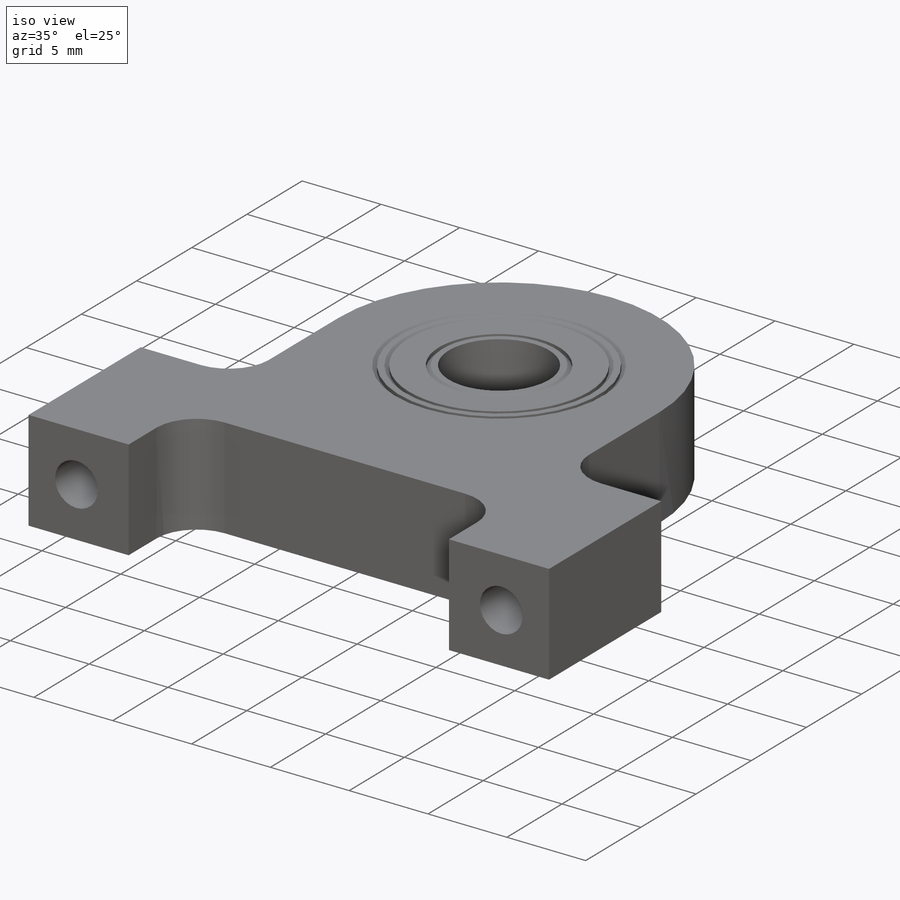
[diagram: iso view]
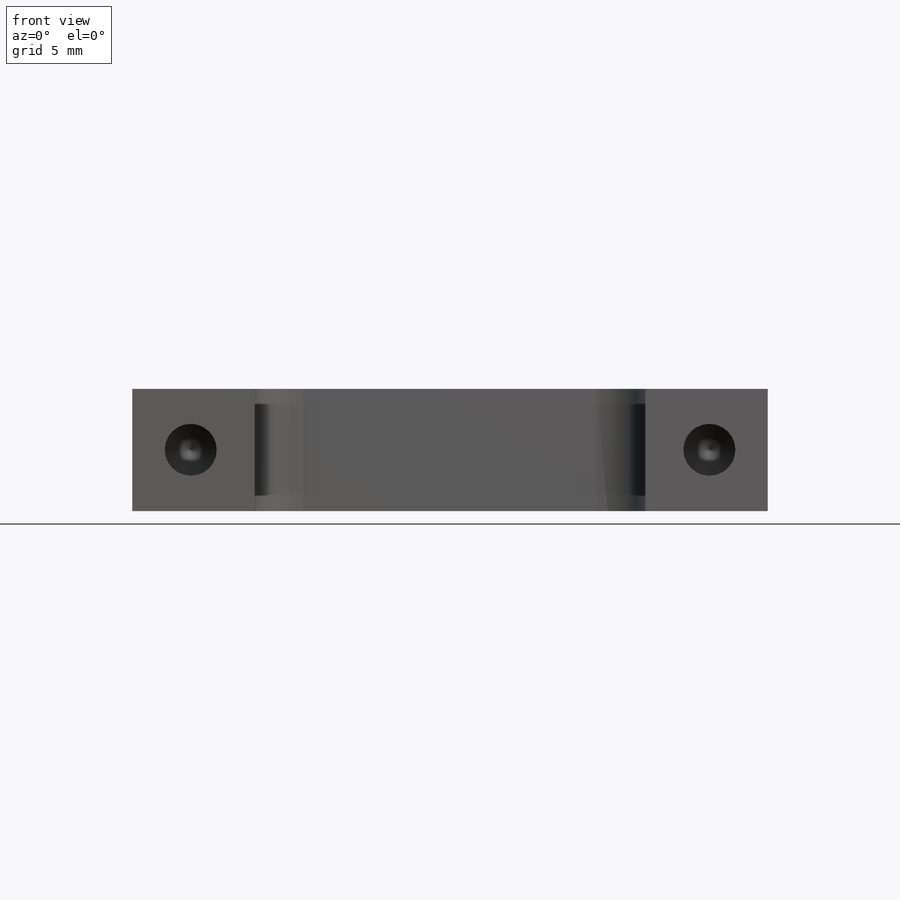
[diagram: front view]
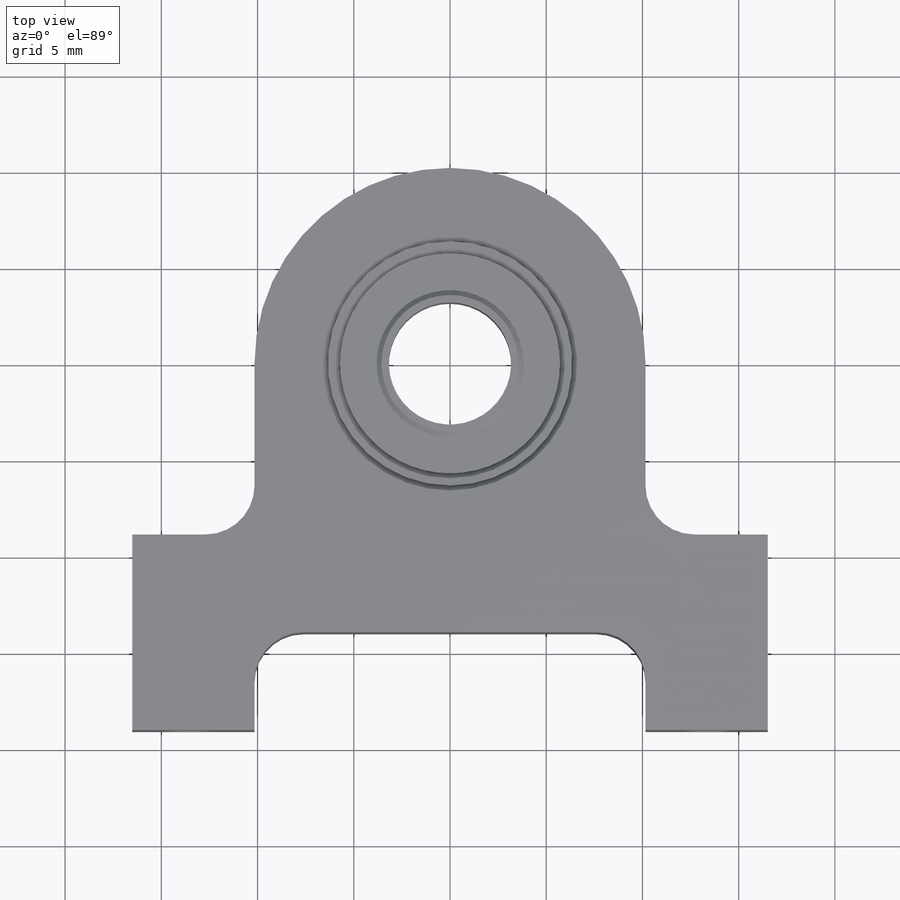
[diagram: top view]
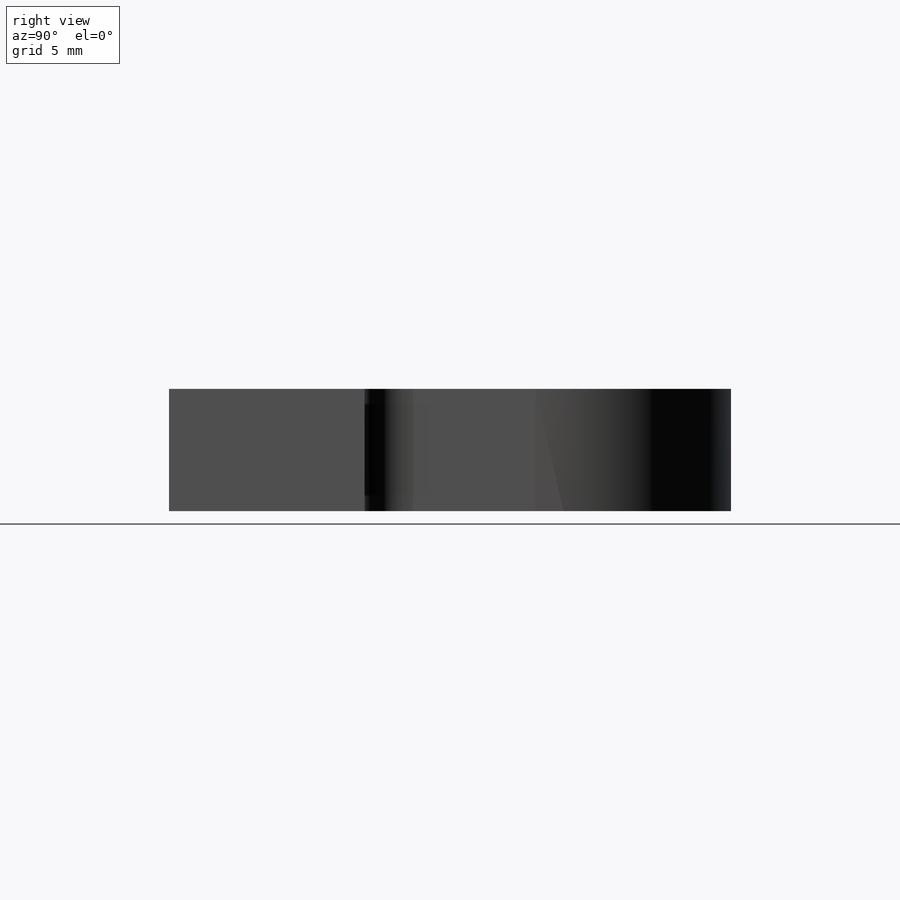
[diagram: right view]
SOLIDWORKS PART (.sldprt)
format: sldprt  version: not decoded by parser v0  size: 361,984 bytes
history: native  units: mm
features: sketch x8, extrude x4, chamfer x3, cut_extrude x2, plane x2, thread x2, material x1, hole x1 (+13 scaffold rows collapsed)
feature tree (36):
  scaffold x13  (default folders/planes/origin — collapsed)
  material  "6061 Alloy"
  sketch  "Sketch1"  dims[c1.D1=~24.175739mm c1.D5=6.35mm c1.D6=20.32mm c1.D7=2.54mm c1.D8=12.7mm c1.D9=2.54mm c2.D1=33.02mm c2.D2=16.51mm c2.D3=19.05mm c2.D4=10.16mm c2.D8=5.08mm c2.D9=5.08mm]
  extrude  "Boss-Extrude1"  Depth=6.35mm
  sketch  "Sketch2"  dims[D1=12.7mm]
  cut_extrude  "Cut-Extrude1"  Depth=4.7625mm
  sketch  "Sketch3"  dims[D1=~5.474919mm]
  cut_extrude  "Cut-Extrude2"  [1 undecoded]
  chamfer  "Chamfer1"  Distance=0.254mm Angle=45deg
  plane  "Plane1"
  sketch  "Sketch4"  dims[D1=0.635mm]
  extrude  "Boss-Extrude2"  Depth=4.7625mm
  chamfer  "Chamfer2"  Distance=0.254mm Angle=45deg
  sketch  "Sketch5"  dims[D1=0.635mm]
  extrude  "Boss-Extrude3"  Depth=4.7625mm
  chamfer  "Chamfer3"  Distance=0.254mm Angle=45deg
  plane  "Plane2"
  sketch  "Sketch7"
  extrude  "Boss-Extrude4"  Depth=4.2545mm
  hole  "#6-32 Tapped Hole1"  Diameter=2.7051mm Depth=7.62mm
  sketch  "Sketch9"  dims[D1=3.175mm D2=3.175mm D3=26.9494mm D4=13.4747mm]
  sketch  "Sketch8"  dims[hole-wizard template sketch: 47 standard entries collapsed; hole parameters kept: c15.Tap Drill Depth=7.62mm c15.D3=~14.816244mm c15.Drill Angle=118.0deg]
  thread  "Hole Thread1"  Diameter=7.0104mm  [1 undecoded]
  thread  "Hole Thread2"  Diameter=7.0104mm  [1 undecoded]
decode coverage: 18 of 20 modeling features carry decoded parameters
note: ~ marks probable driven/reference dimensions
note: 3 parameter values undecoded
note: suppression state not decoded; provenance and decode notes live in map.json
